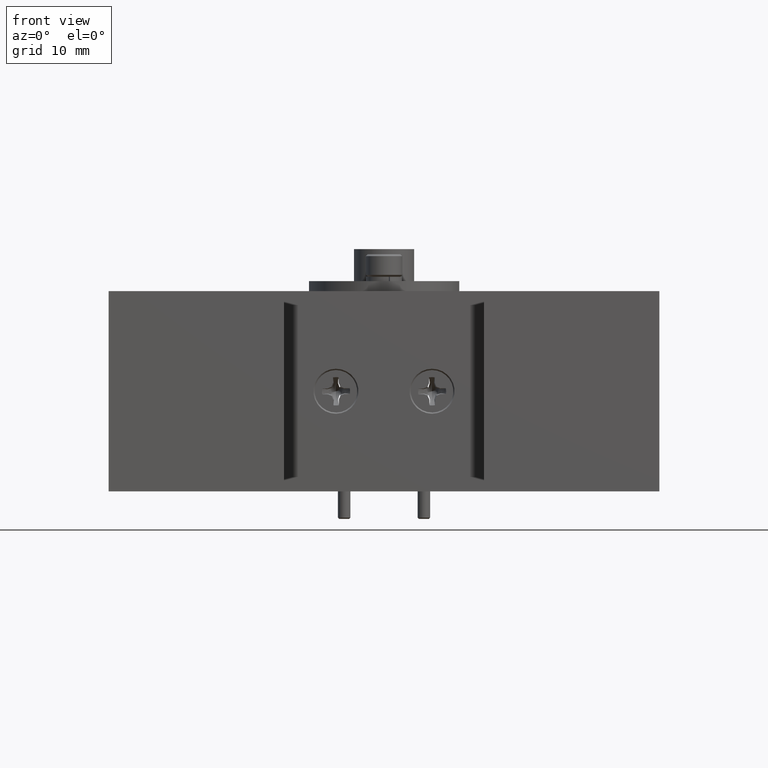
[diagram: clean part render]
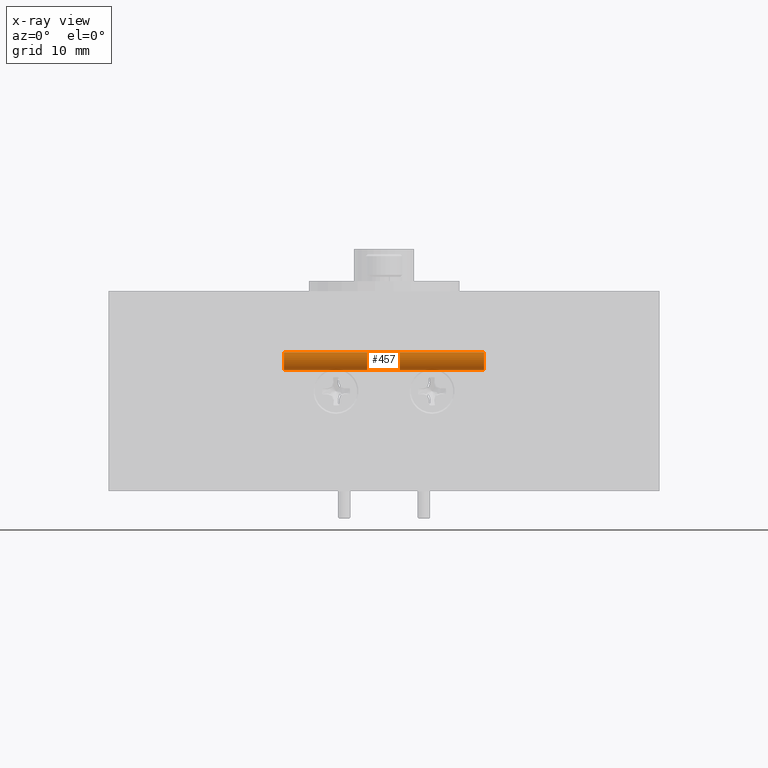
[diagram: x-ray — body ghosted, one internal face saturated and labeled with its STEP entity id]
A machine part, front view, then the same camera in x-ray: the body is ghosted and one INTERNAL B-rep face — a face not visible from any outside direction — is saturated and labeled: STEP entity #457.
In plain terms, the highlighted cylindrical surface (edge-blend (fillet) strip) has radius 1.1303 mm, axis along (-1, -0, -0).
Its self-contained STEP definition (entity closure, byte-faithful):
#124 = EDGE_CURVE ( 'NONE', #7463, #16235, #14955, .T. ) ;
#349 = EDGE_CURVE ( 'NONE', #7278, #16235, #15662, .T. ) ;
#351 = CIRCLE ( 'NONE', #7698, 1.130299999999996300 ) ;
#381 = DIRECTION ( 'NONE',  ( -1.000000000000000000, -0.0000000000000000000, -0.0000000000000000000 ) ) ;
#457 = ADVANCED_FACE ( 'NONE', ( #5137 ), #13540, .F. ) ;
#1585 = VECTOR ( 'NONE', #4767, 1000.000000000000000 ) ;
#1983 = AXIS2_PLACEMENT_3D ( 'NONE', #8422, #381, #8479 ) ;
#3830 = VECTOR ( 'NONE', #13171, 1000.000000000000000 ) ;
#4412 = DIRECTION ( 'NONE',  ( -1.000000000000000000, 0.0000000000000000000, 0.0000000000000000000 ) ) ;
#4767 = DIRECTION ( 'NONE',  ( -1.000000000000000000, -0.0000000000000000000, -0.0000000000000000000 ) ) ;
#5137 = FACE_OUTER_BOUND ( 'NONE', #12525, .T. ) ;
#6300 = VERTEX_POINT ( 'NONE', #8119 ) ;
#6594 = EDGE_CURVE ( 'NONE', #6300, #7278, #351, .T. ) ;
#7278 = VERTEX_POINT ( 'NONE', #14924 ) ;
#7463 = VERTEX_POINT ( 'NONE', #16731 ) ;
#7651 = CARTESIAN_POINT ( 'NONE',  ( -12.69999999999998900, 13.97000000000000100, 3.810000000000009400 ) ) ;
#7698 = AXIS2_PLACEMENT_3D ( 'NONE', #12561, #4412, #15142 ) ;
#7833 = LINE ( 'NONE', #9306, #3830 ) ;
#8119 = CARTESIAN_POINT ( 'NONE',  ( 12.70000000000001000, 13.97000000000000100, 2.679700000000013300 ) ) ;
#8422 = CARTESIAN_POINT ( 'NONE',  ( -12.69999999999998900, 13.97000000000000100, 3.810000000000009400 ) ) ;
#8479 = DIRECTION ( 'NONE',  ( 0.0000000000000000000, 0.0000000000000000000, 1.000000000000000000 ) ) ;
#8732 = CARTESIAN_POINT ( 'NONE',  ( -12.69999999999998900, 13.97000000000000100, 4.940300000000008600 ) ) ;
#9306 = CARTESIAN_POINT ( 'NONE',  ( -12.69999999999998900, 13.97000000000000100, 2.679700000000013300 ) ) ;
#9676 = ORIENTED_EDGE ( 'NONE', *, *, #124, .T. ) ;
#11106 = ORIENTED_EDGE ( 'NONE', *, *, #349, .F. ) ;
#11474 = CARTESIAN_POINT ( 'NONE',  ( -12.69999999999998900, 13.97000000000000100, 4.940300000000005900 ) ) ;
#11744 = ORIENTED_EDGE ( 'NONE', *, *, #6594, .F. ) ;
#12525 = EDGE_LOOP ( 'NONE', ( #11744, #13901, #9676, #11106 ) ) ;
#12561 = CARTESIAN_POINT ( 'NONE',  ( 12.70000000000001000, 13.97000000000000100, 3.810000000000009400 ) ) ;
#12563 = EDGE_CURVE ( 'NONE', #6300, #7463, #7833, .T. ) ;
#13171 = DIRECTION ( 'NONE',  ( -1.000000000000000000, -0.0000000000000000000, -0.0000000000000000000 ) ) ;
#13266 = DIRECTION ( 'NONE',  ( 0.0000000000000000000, 0.0000000000000000000, 1.000000000000000000 ) ) ;
#13540 = CYLINDRICAL_SURFACE ( 'NONE', #16721, 1.130299999999996300 ) ;
#13901 = ORIENTED_EDGE ( 'NONE', *, *, #12563, .T. ) ;
#14924 = CARTESIAN_POINT ( 'NONE',  ( 12.70000000000001000, 13.97000000000000100, 4.940300000000005900 ) ) ;
#14955 = CIRCLE ( 'NONE', #1983, 1.130299999999999000 ) ;
#15142 = DIRECTION ( 'NONE',  ( 0.0000000000000000000, 0.0000000000000000000, 1.000000000000000000 ) ) ;
#15572 = DIRECTION ( 'NONE',  ( -1.000000000000000000, -0.0000000000000000000, -0.0000000000000000000 ) ) ;
#15662 = LINE ( 'NONE', #11474, #1585 ) ;
#16235 = VERTEX_POINT ( 'NONE', #8732 ) ;
#16721 = AXIS2_PLACEMENT_3D ( 'NONE', #7651, #15572, #13266 ) ;
#16731 = CARTESIAN_POINT ( 'NONE',  ( -12.69999999999998900, 13.97000000000000100, 2.679700000000010600 ) ) ;